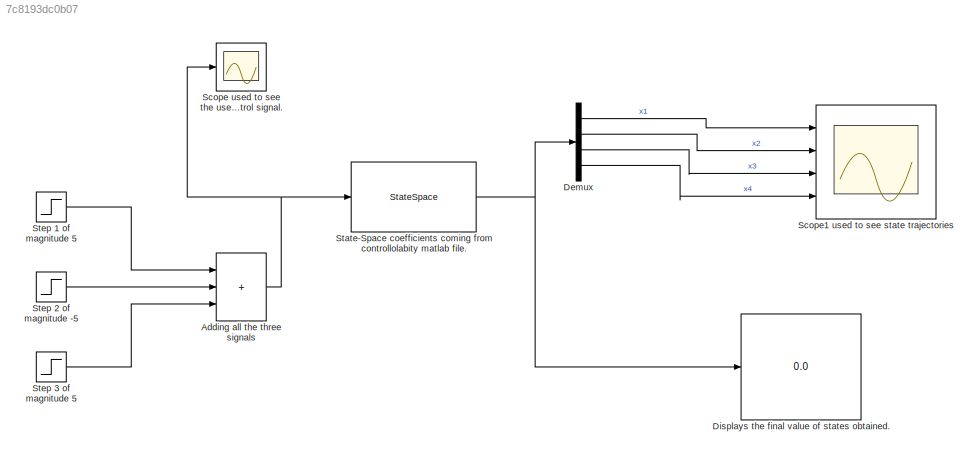
MODEL slx_7c8193dc0b07
KIND model
CONFIG AbsTol = auto
CONFIG EnableMultiTasking = off
CONFIG FixedStep = auto
CONFIG MaxStep = auto
CONFIG MinStep = auto
CONFIG RelTol = 1e-3
CONFIG SampleTimeConstraint = Unconstrained
CONFIG SolverName = VariableStepAuto
CONFIG StartTime = 0.0
CONFIG StopTime = 25
BLOCK [Sum] Adding all the three signals
  IconShape = rectangular
  Inputs = +++
  Ports = [3, 1]
BLOCK [Demux] Demux
  Ports = [1, 4]
BLOCK [Display] Displays the final value of states obtained.
  Decimation = 1
  Ports = [1]
BLOCK [Scope] Scope used to see the user-defined control signal.
  Floating = off
  NumInputPorts = 1
  Ports = [1]
  ScopeSpecificationString = Simulink.scopes.TimeScopeBlockCfg('CurrentConfiguration', extmgr.ConfigurationSet(extmgr.Configuration('Core','General UI',true),extmgr.Configuration('Core','Source UI',true),extmgr.Configuration('Sources','WiredSimulink',true),extmgr.Configuration('Visuals','Time Domain',true,'SerializedDisplays',{struct('MinYLimReal','-0.625','MaxYLimReal','5.625','YLabelReal','','MinYLimMag','0.00000','MaxYLimM...<+1308ch>
BLOCK [Scope] Scope1 used to see state trajectories
  Floating = off
  NumInputPorts = 4
  Ports = [4]
  ScopeSpecificationString = Simulink.scopes.TimeScopeBlockCfg('CurrentConfiguration', extmgr.ConfigurationSet(extmgr.Configuration('Core','General UI',true),extmgr.Configuration('Core','Source UI',true),extmgr.Configuration('Sources','WiredSimulink',true,'DataLoggingVariableName','ScopeData1'),extmgr.Configuration('Visuals','Time Domain',true,'SerializedDisplays',{struct('MinYLimReal','-31.4034','MaxYLimReal','61.30988','YLa...<+3399ch>
BLOCK [StateSpace] State-Space coefficients coming from controllolabity matlab file.
  A = A
  B = B
  C = eye(4)
  D = zeros(4,1)
  InitialCondition = zeros(4,1)
  Ports = [1, 1]
BLOCK [Step] Step 1 of magnitude 5 
  After = 5
  SampleTime = 1
  Time = 5
BLOCK [Step] Step 2 of magnitude -5
  After = -5
  SampleTime = 0
  Time = 8
BLOCK [Step] Step 3 of magnitude 5
  After = 5
  SampleTime = 0
  Time = 14
NET Adding all the three signals:1 -> Scope used to see the user-defined control signal.:1, State-Space coefficients coming from controllolabity matlab file.:1
LINE Demux:1 -> Scope1 used to see state trajectories:1
LINE Demux:2 -> Scope1 used to see state trajectories:2
LINE Demux:3 -> Scope1 used to see state trajectories:3
LINE Demux:4 -> Scope1 used to see state trajectories:4
NET State-Space coefficients coming from controllolabity matlab file.:1 -> Demux:1, Displays the final value of states obtained.:1
LINE Step 1 of magnitude 5 :1 -> Adding all the three signals:1
LINE Step 2 of magnitude -5:1 -> Adding all the three signals:2
LINE Step 3 of magnitude 5:1 -> Adding all the three signals:3
note: NET lines group one-source signal fan-out (src -> all destinations, sorted); 1:1 wires keep LINE
